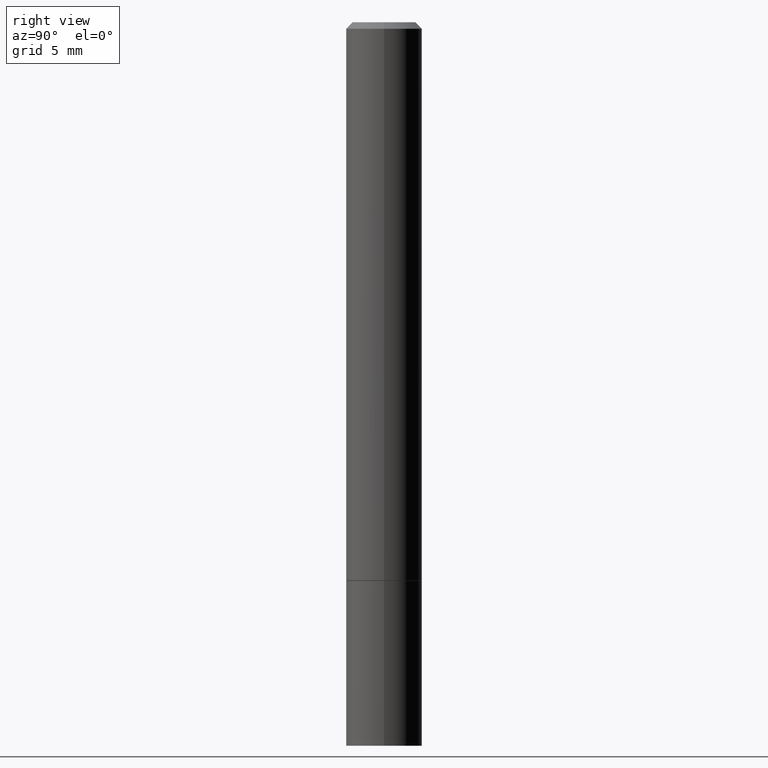
[diagram: clean part render]
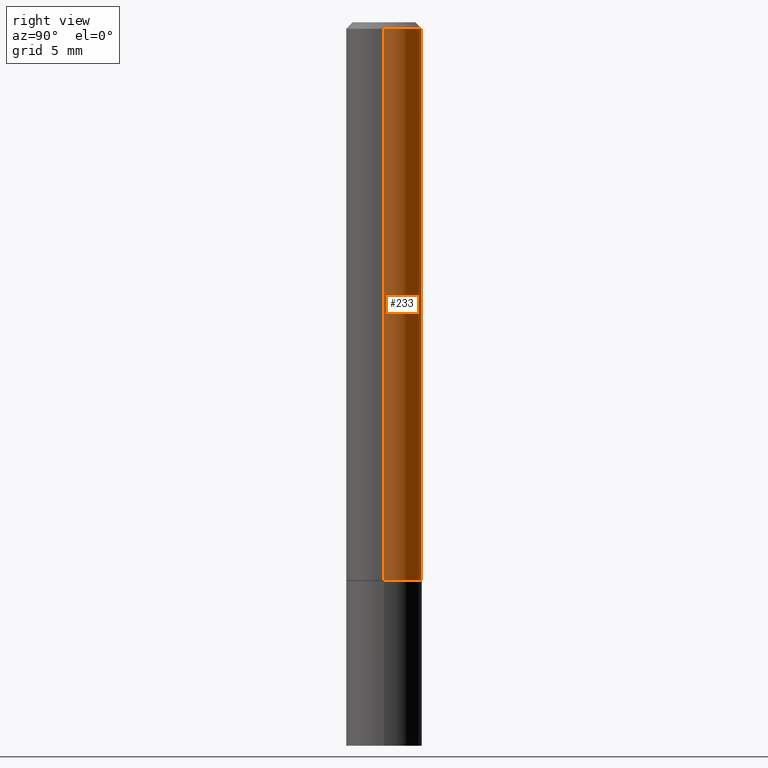
[diagram: same view with one face highlighted and labeled with its STEP entity id]
A machine part, right view. The second image highlights one B-rep face of the part: STEP entity #233.
In plain terms, the highlighted cylindrical surface (partial cylindrical patch) has radius 2.9997 mm, axis along (-0, 0, 1).
Its self-contained STEP definition (entity closure, byte-faithful):
#25 = VECTOR ( 'NONE', #269, 39.37007874015748143 ) ;
#33 = ORIENTED_EDGE ( 'NONE', *, *, #333, .T. ) ;
#57 = CARTESIAN_POINT ( 'NONE',  ( -0.1180999999999999273, 8.391509709326778027E-16, -5.809262341591040281E-30 ) ) ;
#82 = DIRECTION ( 'NONE',  ( -2.445468806185136597E-29, 3.491481338843145583E-15, 1.000000000000000000 ) ) ;
#83 = AXIS2_PLACEMENT_3D ( 'NONE', #183, #100, #179 ) ;
#89 = ORIENTED_EDGE ( 'NONE', *, *, #299, .F. ) ;
#92 = VERTEX_POINT ( 'NONE', #314 ) ;
#100 = DIRECTION ( 'NONE',  ( -2.445468806185136597E-29, 3.491481338843145583E-15, 1.000000000000000000 ) ) ;
#117 = VECTOR ( 'NONE', #168, 39.37007874015748143 ) ;
#132 = LINE ( 'NONE', #265, #25 ) ;
#142 = CIRCLE ( 'NONE', #279, 0.1180999999999998301 ) ;
#153 = CIRCLE ( 'NONE', #303, 0.1181000000000000383 ) ;
#155 = VERTEX_POINT ( 'NONE', #267 ) ;
#161 = DIRECTION ( 'NONE',  ( -2.445468806185136597E-29, 3.491481338843145583E-15, 1.000000000000000000 ) ) ;
#168 = DIRECTION ( 'NONE',  ( -2.445468806185136877E-29, 3.491481338843145188E-15, 1.000000000000000000 ) ) ;
#179 = DIRECTION ( 'NONE',  ( 1.000000000000000000, -6.982962677686266711E-15, 4.876176775795935793E-29 ) ) ;
#183 = CARTESIAN_POINT ( 'NONE',  ( 0.000000000000000000, 0.000000000000000000, 0.000000000000000000 ) ) ;
#206 = EDGE_LOOP ( 'NONE', ( #225, #33, #89, #339 ) ) ;
#208 = EDGE_CURVE ( 'NONE', #92, #155, #153, .T. ) ;
#221 = CARTESIAN_POINT ( 'NONE',  ( -0.1180999999999998301, 7.548582654578837811E-16, -0.02000000000000004552 ) ) ;
#225 = ORIENTED_EDGE ( 'NONE', *, *, #208, .T. ) ;
#233 = ADVANCED_FACE ( 'NONE', ( #354 ), #240, .T. ) ;
#240 = CYLINDRICAL_SURFACE ( 'NONE', #83, 0.1180999999999999273 ) ;
#261 = EDGE_CURVE ( 'NONE', #92, #286, #132, .T. ) ;
#265 = CARTESIAN_POINT ( 'NONE',  ( 0.1180999999999999273, -8.246878922347475723E-16, 5.758764772214996937E-30 ) ) ;
#267 = CARTESIAN_POINT ( 'NONE',  ( -0.1181000000000000383, -2.218164663425319332E-15, -1.731299999999999839 ) ) ;
#269 = DIRECTION ( 'NONE',  ( -2.445468806185136877E-29, 3.491481338843145188E-15, 1.000000000000000000 ) ) ;
#270 = CARTESIAN_POINT ( 'NONE',  ( 4.233840144148326789E-29, -6.044801641939137282E-15, -1.731299999999999839 ) ) ;
#275 = CARTESIAN_POINT ( 'NONE',  ( 0.1180999999999998301, -8.800544403136797528E-16, -0.02000000000000004552 ) ) ;
#279 = AXIS2_PLACEMENT_3D ( 'NONE', #337, #82, #280 ) ;
#280 = DIRECTION ( 'NONE',  ( 1.000000000000000000, -6.982962677686266711E-15, 0.000000000000000000 ) ) ;
#286 = VERTEX_POINT ( 'NONE', #275 ) ;
#299 = EDGE_CURVE ( 'NONE', #286, #332, #142, .T. ) ;
#303 = AXIS2_PLACEMENT_3D ( 'NONE', #270, #161, #356 ) ;
#305 = LINE ( 'NONE', #57, #117 ) ;
#314 = CARTESIAN_POINT ( 'NONE',  ( 0.1181000000000000383, -6.869489534173886334E-15, -1.731299999999999839 ) ) ;
#332 = VERTEX_POINT ( 'NONE', #221 ) ;
#333 = EDGE_CURVE ( 'NONE', #155, #332, #305, .T. ) ;
#337 = CARTESIAN_POINT ( 'NONE',  ( 4.890937612370284544E-31, -6.982962677686307633E-17, -0.02000000000000004552 ) ) ;
#339 = ORIENTED_EDGE ( 'NONE', *, *, #261, .F. ) ;
#354 = FACE_OUTER_BOUND ( 'NONE', #206, .T. ) ;
#356 = DIRECTION ( 'NONE',  ( 1.000000000000000000, -6.982962677686270655E-15, 0.000000000000000000 ) ) ;